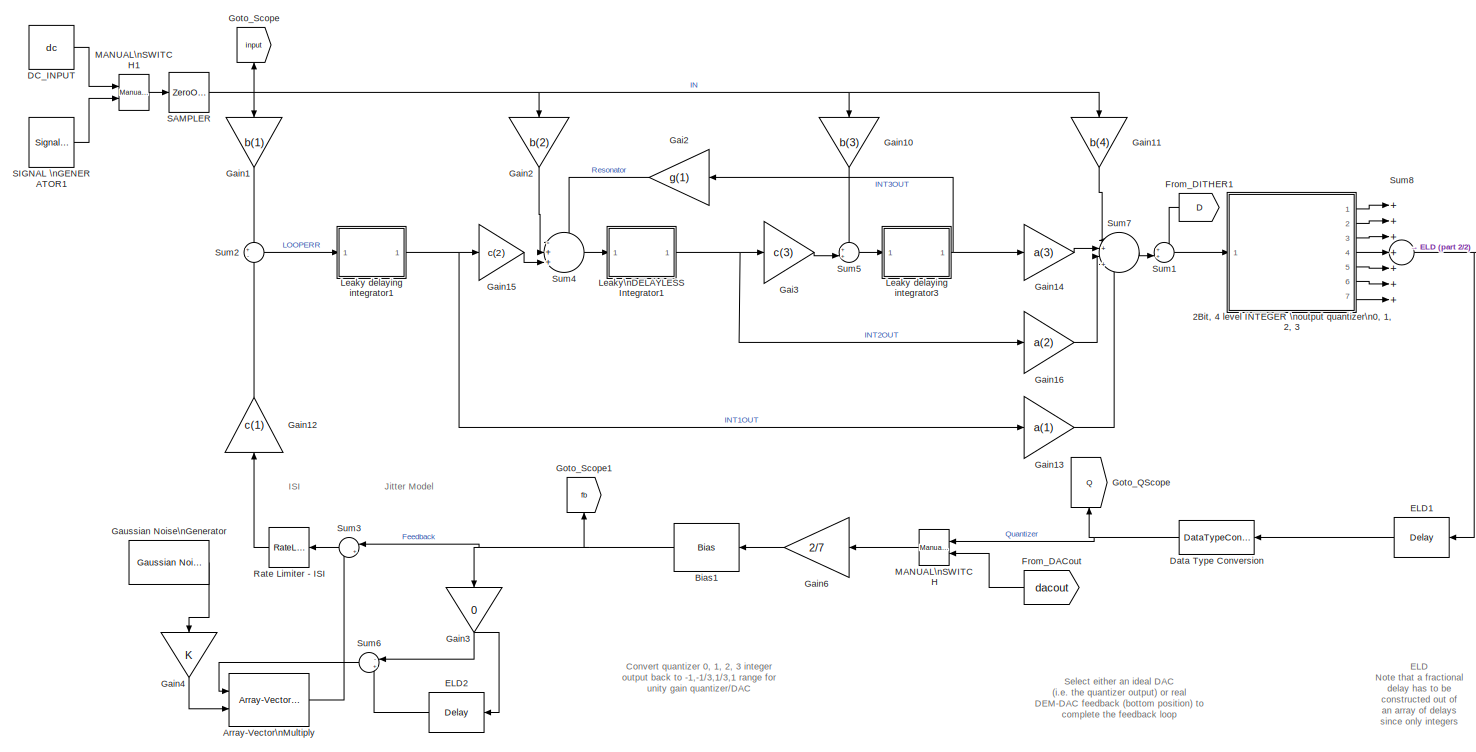
[diagram: root canvas - part 1/2, center side, full height]
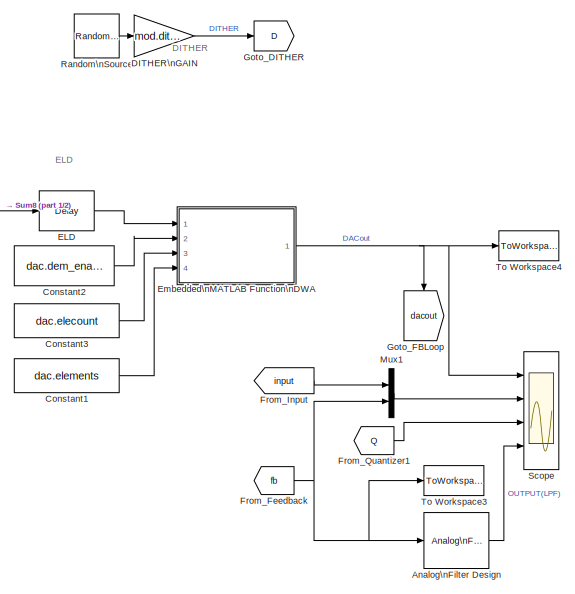
[diagram: root canvas - part 2/2, right side, full height]
MODEL Complete_DAC_mod3_CRFF_CTExample
KIND model
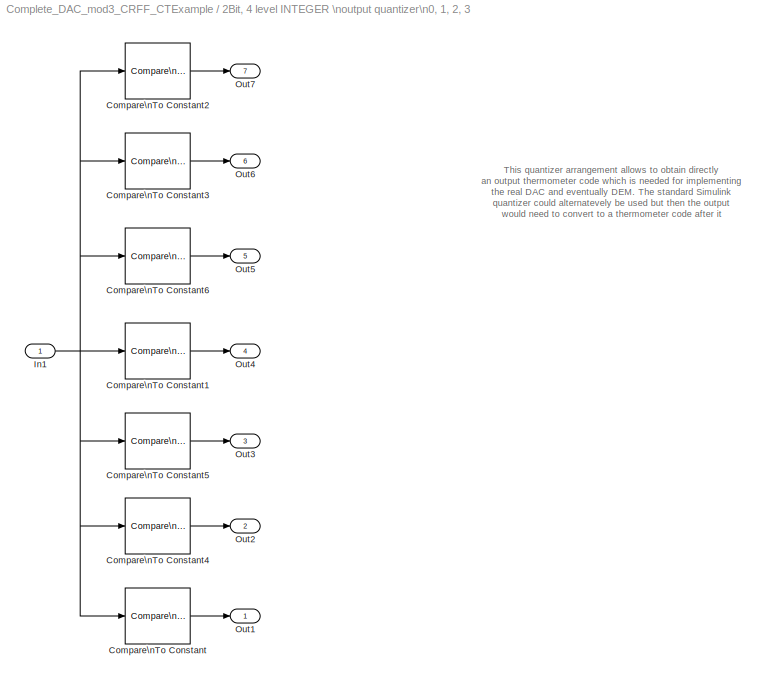
BLOCK [SubSystem] 2Bit, 4 level INTEGER  \noutput quantizer\n0, 1, 2, 3
  FunctionWithSeparateData = off
  MaskHideContents = off
  MinAlgLoopOccurrences = off
  Opaque = off
  Ports = [1, 7]
  PropExecContextOutsideSubsystem = off
  RTWSystemCode = Auto
  RequestExecContextInheritance = off
  SID = 305
BLOCK [Reference] 2Bit, 4 level INTEGER  \noutput quantizer\n0, 1, 2, 3/Compare\nTo Constant  REF=simulink/Logic and Bit\nOperations/Compare\nTo Constant
  OutDataTypeStr = uint8
  Ports = [1, 1]
  SID = 307
  SourceBlock = simulink/Logic and Bit\nOperations/Compare\nTo Constant
  SourceType = Compare To Constant
  ZeroCross = on
  const = -6/7
  relop = >=
BLOCK [Reference] 2Bit, 4 level INTEGER  \noutput quantizer\n0, 1, 2, 3/Compare\nTo Constant1  REF=simulink/Logic and Bit\nOperations/Compare\nTo Constant
  OutDataTypeStr = uint8
  Ports = [1, 1]
  SID = 308
  SourceBlock = simulink/Logic and Bit\nOperations/Compare\nTo Constant
  SourceType = Compare To Constant
  ZeroCross = on
  const = 0
  relop = >=
BLOCK [Reference] 2Bit, 4 level INTEGER  \noutput quantizer\n0, 1, 2, 3/Compare\nTo Constant2  REF=simulink/Logic and Bit\nOperations/Compare\nTo Constant
  OutDataTypeStr = uint8
  Ports = [1, 1]
  SID = 309
  SourceBlock = simulink/Logic and Bit\nOperations/Compare\nTo Constant
  SourceType = Compare To Constant
  ZeroCross = on
  const = 6/7
  relop = >=
BLOCK [Reference] 2Bit, 4 level INTEGER  \noutput quantizer\n0, 1, 2, 3/Compare\nTo Constant3  REF=simulink/Logic and Bit\nOperations/Compare\nTo Constant
  OutDataTypeStr = uint8
  Ports = [1, 1]
  SID = 438
  SourceBlock = simulink/Logic and Bit\nOperations/Compare\nTo Constant
  SourceType = Compare To Constant
  ZeroCross = on
  const = 4/7
  relop = >=
BLOCK [Reference] 2Bit, 4 level INTEGER  \noutput quantizer\n0, 1, 2, 3/Compare\nTo Constant4  REF=simulink/Logic and Bit\nOperations/Compare\nTo Constant
  OutDataTypeStr = uint8
  Ports = [1, 1]
  SID = 440
  SourceBlock = simulink/Logic and Bit\nOperations/Compare\nTo Constant
  SourceType = Compare To Constant
  ZeroCross = on
  const = -4/7
  relop = >=
BLOCK [Reference] 2Bit, 4 level INTEGER  \noutput quantizer\n0, 1, 2, 3/Compare\nTo Constant5  REF=simulink/Logic and Bit\nOperations/Compare\nTo Constant
  OutDataTypeStr = uint8
  Ports = [1, 1]
  SID = 442
  SourceBlock = simulink/Logic and Bit\nOperations/Compare\nTo Constant
  SourceType = Compare To Constant
  ZeroCross = on
  const = -2/7
  relop = >=
BLOCK [Reference] 2Bit, 4 level INTEGER  \noutput quantizer\n0, 1, 2, 3/Compare\nTo Constant6  REF=simulink/Logic and Bit\nOperations/Compare\nTo Constant
  OutDataTypeStr = uint8
  Ports = [1, 1]
  SID = 444
  SourceBlock = simulink/Logic and Bit\nOperations/Compare\nTo Constant
  SourceType = Compare To Constant
  ZeroCross = on
  const = 2/7
  relop = >=
BLOCK [Inport] 2Bit, 4 level INTEGER  \noutput quantizer\n0, 1, 2, 3/In1
  IconDisplay = Port number
  SID = 306
BLOCK [Outport] 2Bit, 4 level INTEGER  \noutput quantizer\n0, 1, 2, 3/Out1
  IconDisplay = Port number
  SID = 310
BLOCK [Outport] 2Bit, 4 level INTEGER  \noutput quantizer\n0, 1, 2, 3/Out2
  IconDisplay = Port number
  Port = 2
  SID = 311
BLOCK [Outport] 2Bit, 4 level INTEGER  \noutput quantizer\n0, 1, 2, 3/Out3
  IconDisplay = Port number
  Port = 3
  SID = 312
BLOCK [Outport] 2Bit, 4 level INTEGER  \noutput quantizer\n0, 1, 2, 3/Out4
  IconDisplay = Port number
  Port = 4
  SID = 439
BLOCK [Outport] 2Bit, 4 level INTEGER  \noutput quantizer\n0, 1, 2, 3/Out5
  IconDisplay = Port number
  Port = 5
  SID = 441
BLOCK [Outport] 2Bit, 4 level INTEGER  \noutput quantizer\n0, 1, 2, 3/Out6
  IconDisplay = Port number
  Port = 6
  SID = 443
BLOCK [Outport] 2Bit, 4 level INTEGER  \noutput quantizer\n0, 1, 2, 3/Out7
  IconDisplay = Port number
  Port = 7
  SID = 445
BLOCK [Reference] Analog\nFilter Design  REF=dsparch4/Analog\nFilter Design
  AttributesFormatString = Low-pass filter the loop output\\nto illustrate intuitively how the\\npulse density modulated +1/-1\\noutput stream does indeed capture\\nthe input signal
  N = 8
  Ports = [1, 1]
  Rp = 2
  Rs = 40
  SID = 314
  SourceBlock = dsparch4/Analog\nFilter Design
  SourceType = Analog Filter Design
  Whi = 80
  Wlo = pi*(Fs/OSR)
  filttype = Lowpass
  method = Butterworth
BLOCK [Reference] Array-Vector\nMultiply  REF=dspmtrx3/Array-Vector\nMultiply
  Dimension = 2
  LockScale = off
  Ports = [2, 1]
  SID = 455
  SourceBlock = dspmtrx3/Array-Vector\nMultiply
  SourceType = Array-Vector Multiply
  V_Source = Input port
  V_VectFromMask = [0.5 0.25]
  accumDataTypeStr = Inherit: Inherit via internal rule
  accumFracLength = 30
  accumLastDataTypeStr = Inherit: Inherit via internal rule
  accumMode = Inherit via internal rule
  accumSignedness = Auto
  accumWordLength = 32
  additionalParams = off
  allowOverrides = on
  firstCoeffDataTypeStr = Inherit: Same word length as input
  firstCoeffFracLength = 15
  firstCoeffLastDataTypeStr = Inherit: Same word length as input
  firstCoeffMax = []
  firstCoeffMin = []
  firstCoeffMode = Same word length as input
  firstCoeffSignedness = Auto
  firstCoeffWordLength = 16
  mode = Mute
  outputDataTypeStr = Inherit: Same as product output
  outputFracLength = 15
  outputLastDataTypeStr = Inherit: Same as product output
  outputMax = []
  outputMin = []
  outputMode = Same as product output
  outputSignedness = Auto
  outputWordLength = 16
  overflowMode = off
  prodOutputDataTypeStr = Inherit: Inherit via internal rule
  prodOutputFracLength = 30
  prodOutputLastDataTypeStr = Inherit: Inherit via internal rule
  prodOutputMode = Inherit via internal rule
  prodOutputSignedness = Auto
  prodOutputWordLength = 32
  roundingMode = Floor
  saveAsFlag = 0
BLOCK [Bias] Bias1
  Bias = -1
  SID = 315
  SaturateOnIntegerOverflow = off
BLOCK [Constant] Constant1
  SID = 316
  SampleTime = 1/Fs
  Value = dac.elements
BLOCK [Constant] Constant2
  SID = 317
  SampleTime = 1/Fs
  Value = dac.dem_enable
BLOCK [Constant] Constant3
  SID = 318
  SampleTime = 1/Fs
  Value = dac.elecount
BLOCK [Constant] DC_INPUT
  OutDataTypeStr = double
  SID = 468
  SampleTime = 1/Fs
  Value = dc
  VectorParams1D = off
BLOCK [Gain] DITHER\nGAIN
  Gain = mod.dither
  OutDataTypeStr = Inherit: Inherit via internal rule
  ParamDataTypeStr = Inherit: Inherit via internal rule
  SID = 243
  SampleTime = 1/Fs
  SaturateOnIntegerOverflow = off
BLOCK [DataTypeConversion] Data Type Conversion
  LockScale = on
  RndMeth = Floor
  SID = 320
  SampleTime = 1/Fs
  SaturateOnIntegerOverflow = off
BLOCK [Reference] ELD  REF=dspsigops/Delay
  InputProcessing = Inherited (this choice will be removed - see release notes)
  Ports = [1, 1]
  SID = 446
  SourceBlock = dspsigops/Delay
  SourceType = Delay
  UserData = DataTag0
  UserDataPersistent = on
  delay = 0
  dif_ic_for_ch = off
  dif_ic_for_dly = off
  dly_unit = Samples
  ic = 0
  ic_detail = off
  reset_popup = None
BLOCK [Reference] ELD1  REF=dspsigops/Delay
  InputProcessing = Inherited (this choice will be removed - see release notes)
  Ports = [1, 1]
  SID = 447
  SourceBlock = dspsigops/Delay
  SourceType = Delay
  UserData = DataTag1
  UserDataPersistent = on
  delay = 0
  dif_ic_for_ch = off
  dif_ic_for_dly = off
  dly_unit = Samples
  ic = 0
  ic_detail = off
  reset_popup = None
BLOCK [Reference] ELD2  REF=dspsigops/Delay
  InputProcessing = Inherited (this choice will be removed - see release notes)
  Ports = [1, 1]
  SID = 453
  SourceBlock = dspsigops/Delay
  SourceType = Delay
  UserData = DataTag2
  UserDataPersistent = on
  delay = 1
  dif_ic_for_ch = off
  dif_ic_for_dly = off
  dly_unit = Samples
  ic = 0
  ic_detail = off
  reset_popup = None
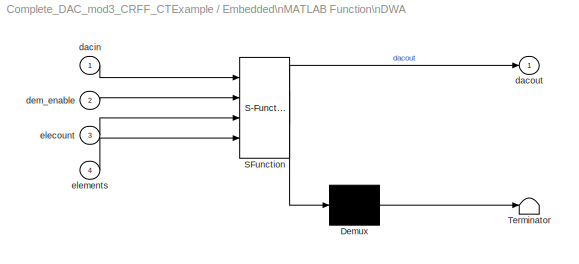
BLOCK [SubSystem] Embedded\nMATLAB Function\nDWA
  ErrorFcn = Stateflow.Translate.translate
  FunctionWithSeparateData = off
  MaskHideContents = off
  MinAlgLoopOccurrences = off
  Opaque = off
  PermitHierarchicalResolution = ExplicitOnly
  Ports = [4, 1]
  PropExecContextOutsideSubsystem = off
  RTWSystemCode = Auto
  RequestExecContextInheritance = off
  SFBlockType = MATLAB Function
  SID = 322
  TreatAsAtomicUnit = on
BLOCK [Demux] Embedded\nMATLAB Function\nDWA/ Demux 
  Outputs = 1
  Ports = [1, 1]
  SID = 322::84
BLOCK [S-Function] Embedded\nMATLAB Function\nDWA/ SFunction 
  EnableBusSupport = on
  FunctionName = sf_sfun
  PortCounts = [4 2]
  Ports = [4, 2]
  SID = 322::83
  Tag = Stateflow S-Function Complete_DAC_mod3_CRFF_CTExample 2
BLOCK [Terminator] Embedded\nMATLAB Function\nDWA/ Terminator 
  SID = 322::85
BLOCK [Inport] Embedded\nMATLAB Function\nDWA/dacin
  IconDisplay = Port number
  SID = 322::78
BLOCK [Outport] Embedded\nMATLAB Function\nDWA/dacout
  IconDisplay = Port number
  SID = 322::89
BLOCK [Inport] Embedded\nMATLAB Function\nDWA/dem_enable
  IconDisplay = Port number
  Port = 2
  SID = 322::86
BLOCK [Inport] Embedded\nMATLAB Function\nDWA/elecount
  IconDisplay = Port number
  Port = 3
  SID = 322::87
BLOCK [Inport] Embedded\nMATLAB Function\nDWA/elements
  IconDisplay = Port number
  Port = 4
  SID = 322::88
BLOCK [From] From_DACout
  GotoTag = dacout
  SID = 323
BLOCK [From] From_DITHER1
  GotoTag = D
  SID = 324
BLOCK [From] From_Feedback
  GotoTag = fb
  SID = 325
BLOCK [From] From_Input
  GotoTag = input
  SID = 326
BLOCK [From] From_Quantizer1
  GotoTag = Q
  SID = 327
BLOCK [Gain] Gai2
  Gain = g(1)
  OutDataTypeStr = Inherit: Inherit via internal rule
  ParamDataTypeStr = Inherit: Inherit via internal rule
  SID = 384
  SaturateOnIntegerOverflow = off
BLOCK [Gain] Gai3
  Gain = c(3)
  OutDataTypeStr = Inherit: Inherit via internal rule
  ParamDataTypeStr = Inherit: Inherit via internal rule
  SID = 385
  SaturateOnIntegerOverflow = off
BLOCK [Gain] Gain1
  Gain = b(1)
  OutDataTypeStr = Inherit: Inherit via internal rule
  ParamDataTypeStr = Inherit: Inherit via internal rule
  SID = 386
  SampleTime = 1/Fs
  SaturateOnIntegerOverflow = off
BLOCK [Gain] Gain10
  Gain = b(3)
  OutDataTypeStr = Inherit: Inherit via internal rule
  ParamDataTypeStr = Inherit: Inherit via internal rule
  SID = 388
  SampleTime = 1/Fs
  SaturateOnIntegerOverflow = off
BLOCK [Gain] Gain11
  Gain = b(4)
  OutDataTypeStr = Inherit: Inherit via internal rule
  ParamDataTypeStr = Inherit: Inherit via internal rule
  SID = 389
  SampleTime = 1/Fs
  SaturateOnIntegerOverflow = off
BLOCK [Gain] Gain12
  Gain = c(1)
  OutDataTypeStr = Inherit: Inherit via internal rule
  ParamDataTypeStr = Inherit: Inherit via internal rule
  SID = 390
  SampleTime = 1/Fs
  SaturateOnIntegerOverflow = off
BLOCK [Gain] Gain13
  Gain = a(1)
  OutDataTypeStr = Inherit: Inherit via internal rule
  ParamDataTypeStr = Inherit: Inherit via internal rule
  SID = 391
  SaturateOnIntegerOverflow = off
BLOCK [Gain] Gain14
  Gain = a(3)
  OutDataTypeStr = Inherit: Inherit via internal rule
  ParamDataTypeStr = Inherit: Inherit via internal rule
  SID = 392
  SaturateOnIntegerOverflow = off
BLOCK [Gain] Gain15
  Gain = c(2)
  OutDataTypeStr = Inherit: Inherit via internal rule
  ParamDataTypeStr = Inherit: Inherit via internal rule
  SID = 393
  SaturateOnIntegerOverflow = off
BLOCK [Gain] Gain16
  Gain = a(2)
  OutDataTypeStr = Inherit: Inherit via internal rule
  ParamDataTypeStr = Inherit: Inherit via internal rule
  SID = 394
  SaturateOnIntegerOverflow = off
BLOCK [Gain] Gain2
  Gain = b(2)
  OutDataTypeStr = Inherit: Inherit via internal rule
  ParamDataTypeStr = Inherit: Inherit via internal rule
  SID = 387
  SampleTime = 1/Fs
  SaturateOnIntegerOverflow = off
BLOCK [Gain] Gain3
  Gain = 0
  OutDataTypeStr = Inherit: Inherit via internal rule
  ParamDataTypeStr = Inherit: Inherit via internal rule
  SID = 452
  SampleTime = 1/Fs
  SaturateOnIntegerOverflow = off
BLOCK [Gain] Gain4
  OutDataTypeStr = Inherit: Inherit via internal rule
  ParamDataTypeStr = Inherit: Inherit via internal rule
  SID = 458
  SampleTime = 1/Fs
  SaturateOnIntegerOverflow = off
BLOCK [Gain] Gain6
  Gain = 2/7
  OutDataTypeStr = Inherit: Inherit via internal rule
  ParamDataTypeStr = Inherit: Inherit via internal rule
  SID = 328
  SampleTime = 1/Fs
  SaturateOnIntegerOverflow = off
BLOCK [Reference] Gaussian Noise\nGenerator  REF=commnoisgen2/Gaussian Noise\nGenerator
  Ports = [0, 1]
  SID = 459
  SourceBlock = commnoisgen2/Gaussian Noise\nGenerator
  SourceType = Gaussian Noise Generator
  Ts = 1/Fs
  d = 50
  frameBased = off
  m = 50e-12
  orient = on
  outDataType = double
  s = 40
  sampPerFrame = 1
BLOCK [Goto] Goto_DITHER
  GotoTag = D
  SID = 244
BLOCK [Goto] Goto_FBLoop
  GotoTag = dacout
  SID = 330
BLOCK [Goto] Goto_QScope
  GotoTag = Q
  SID = 331
BLOCK [Goto] Goto_Scope
  GotoTag = input
  SID = 371
BLOCK [Goto] Goto_Scope1
  GotoTag = fb
  SID = 332
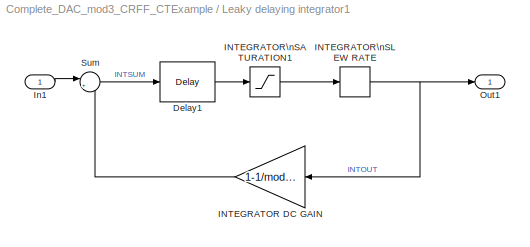
BLOCK [SubSystem] Leaky delaying integrator1
  FunctionWithSeparateData = off
  MaskHideContents = off
  MinAlgLoopOccurrences = off
  Opaque = off
  Ports = [1, 1]
  PropExecContextOutsideSubsystem = off
  RTWSystemCode = Auto
  RequestExecContextInheritance = off
  SID = 403
BLOCK [Reference] Leaky delaying integrator1/Delay1  REF=dspsigops/Delay
  InputProcessing = Inherited (this choice will be removed - see release notes)
  Ports = [1, 1]
  SID = 405
  SourceBlock = dspsigops/Delay
  SourceType = Delay
  UserData = DataTag4
  UserDataPersistent = on
  delay = 1
  dif_ic_for_ch = off
  dif_ic_for_dly = off
  dly_unit = Samples
  ic = 0
  ic_detail = off
  reset_popup = None
BLOCK [Gain] Leaky delaying integrator1/INTEGRATOR DC GAIN
  AttributesFormatString = Integrator leakage\\n(model finite integrator dc/LF\\ngain in analog modulators)
  Gain = 1-1/mod.igain1
  OutDataTypeStr = Inherit: Inherit via internal rule
  ParamDataTypeStr = Inherit: Inherit via internal rule
  SID = 408
  SampleTime = 1/Fs
  SaturateOnIntegerOverflow = off
BLOCK [Saturate] Leaky delaying integrator1/INTEGRATOR\nSATURATION1
  InputPortMap = u0
  LowerLimit = -(mod.isat1)
  Ports = [1, 1]
  SID = 406
  UpperLimit = mod.isat1
BLOCK [RateLimiter] Leaky delaying integrator1/INTEGRATOR\nSLEW RATE
  FallingSlewLimit = -(mod.isr1)
  RisingSlewLimit = mod.isr1
  SID = 407
  SampleTimeMode = inherited
BLOCK [Inport] Leaky delaying integrator1/In1
  IconDisplay = Port number
  SID = 404
BLOCK [Outport] Leaky delaying integrator1/Out1
  IconDisplay = Port number
  SID = 410
BLOCK [Sum] Leaky delaying integrator1/Sum
  AttributesFormatString = Integrator summer
  IconShape = round
  InputSameDT = off
  Inputs = |++
  OutDataTypeStr = Inherit: Inherit via internal rule
  Ports = [2, 1]
  SID = 409
  SampleTime = 1/Fs
  SaturateOnIntegerOverflow = off
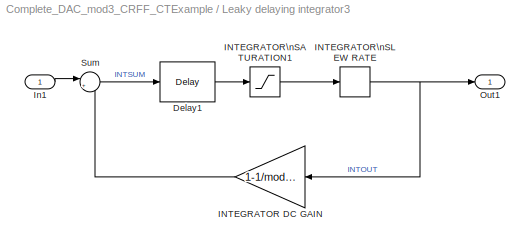
BLOCK [SubSystem] Leaky delaying integrator3
  FunctionWithSeparateData = off
  MaskHideContents = off
  MinAlgLoopOccurrences = off
  Opaque = off
  Ports = [1, 1]
  PropExecContextOutsideSubsystem = off
  RTWSystemCode = Auto
  RequestExecContextInheritance = off
  SID = 411
BLOCK [Reference] Leaky delaying integrator3/Delay1  REF=dspsigops/Delay
  InputProcessing = Inherited (this choice will be removed - see release notes)
  Ports = [1, 1]
  SID = 413
  SourceBlock = dspsigops/Delay
  SourceType = Delay
  UserData = DataTag5
  UserDataPersistent = on
  delay = 1
  dif_ic_for_ch = off
  dif_ic_for_dly = off
  dly_unit = Samples
  ic = 0
  ic_detail = off
  reset_popup = None
BLOCK [Gain] Leaky delaying integrator3/INTEGRATOR DC GAIN
  AttributesFormatString = Integrator leakage\\n(model finite integrator dc/LF\\ngain in analog modulators)
  Gain = 1-1/mod.igain3
  OutDataTypeStr = Inherit: Inherit via internal rule
  ParamDataTypeStr = Inherit: Inherit via internal rule
  SID = 416
  SaturateOnIntegerOverflow = off
BLOCK [Saturate] Leaky delaying integrator3/INTEGRATOR\nSATURATION1
  InputPortMap = u0
  LowerLimit = -(mod.isat3)
  Ports = [1, 1]
  SID = 414
  UpperLimit = mod.isat3
BLOCK [RateLimiter] Leaky delaying integrator3/INTEGRATOR\nSLEW RATE
  FallingSlewLimit = -(mod.isr3)
  RisingSlewLimit = mod.isr3
  SID = 415
  SampleTimeMode = inherited
BLOCK [Inport] Leaky delaying integrator3/In1
  IconDisplay = Port number
  SID = 412
BLOCK [Outport] Leaky delaying integrator3/Out1
  IconDisplay = Port number
  SID = 418
BLOCK [Sum] Leaky delaying integrator3/Sum
  AttributesFormatString = Integrator summer
  IconShape = round
  InputSameDT = off
  Inputs = |++
  OutDataTypeStr = Inherit: Inherit via internal rule
  Ports = [2, 1]
  SID = 417
  SampleTime = 1/Fs
  SaturateOnIntegerOverflow = off
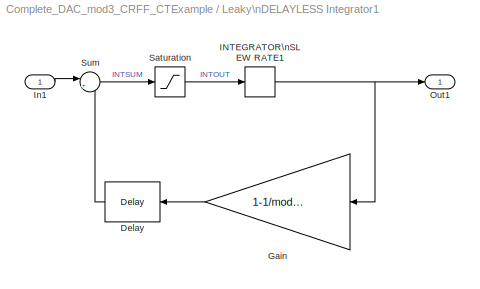
BLOCK [SubSystem] Leaky\nDELAYLESS Integrator1
  FunctionWithSeparateData = off
  MaskHideContents = off
  MinAlgLoopOccurrences = off
  Opaque = off
  Ports = [1, 1]
  PropExecContextOutsideSubsystem = off
  RTWSystemCode = Auto
  RequestExecContextInheritance = off
  SID = 395
BLOCK [Reference] Leaky\nDELAYLESS Integrator1/Delay  REF=dspsigops/Delay
  InputProcessing = Inherited (this choice will be removed - see release notes)
  Ports = [1, 1]
  SID = 397
  SourceBlock = dspsigops/Delay
  SourceType = Delay
  UserData = DataTag3
  UserDataPersistent = on
  delay = 1
  dif_ic_for_ch = off
  dif_ic_for_dly = off
  dly_unit = Samples
  ic = 0
  ic_detail = off
  reset_popup = None
BLOCK [Gain] Leaky\nDELAYLESS Integrator1/Gain
  AttributesFormatString = Integrator leakage
  Gain = 1-1/mod.igain2
  OutDataTypeStr = Inherit: Inherit via internal rule
  ParamDataTypeStr = Inherit: Inherit via internal rule
  SID = 398
  SaturateOnIntegerOverflow = off
BLOCK [RateLimiter] Leaky\nDELAYLESS Integrator1/INTEGRATOR\nSLEW RATE1
  FallingSlewLimit = -(mod.isr2)
  RisingSlewLimit = mod.isr2
  SID = 399
  SampleTimeMode = inherited
BLOCK [Inport] Leaky\nDELAYLESS Integrator1/In1
  IconDisplay = Port number
  SID = 396
BLOCK [Outport] Leaky\nDELAYLESS Integrator1/Out1
  IconDisplay = Port number
  SID = 402
BLOCK [Saturate] Leaky\nDELAYLESS Integrator1/Saturation
  InputPortMap = u0
  LowerLimit = -(mod.isat2)
  Ports = [1, 1]
  SID = 400
  UpperLimit = mod.isat2
BLOCK [Sum] Leaky\nDELAYLESS Integrator1/Sum
  AttributesFormatString = Integrator summer
  IconShape = round
  InputSameDT = off
  Inputs = |++
  OutDataTypeStr = Inherit: Inherit via internal rule
  Ports = [2, 1]
  SID = 401
  SampleTime = 1/Fs
  SaturateOnIntegerOverflow = off
BLOCK [Reference] MANUAL\nSWITCH  REF=simulink/Signal\nRouting/Manual Switch
  AttributesFormatString = Double click to\\nselect the desired\\ninput
  Ports = [2, 1]
  SID = 333
  SourceBlock = simulink/Signal\nRouting/Manual Switch
  SourceType = Manual Switch
  action = 0
  sw = 0
  varsize = off
BLOCK [Reference] MANUAL\nSWITCH1  REF=simulink/Signal\nRouting/Manual Switch
  AttributesFormatString = Double click to\\nselect the desired\\ninput
  Ports = [2, 1]
  SID = 469
  SourceBlock = simulink/Signal\nRouting/Manual Switch
  SourceType = Manual Switch
  action = 0
  sw = 0
  varsize = off
BLOCK [Mux] Mux1
  DisplayOption = bar
  Inputs = 2
  Ports = [2, 1]
  SID = 334
BLOCK [Reference] Random\nSource  REF=dspsrcs4/Random\nSource
  CltLength = 12
  DataType = Double
  IsInherit = off
  MaxVal = 1
  MeanVal = 0
  MinVal = -1
  NormMethod = Ziggurat
  OutComplex = Real
  Ports = [0, 1]
  RepMode = Not repeatable
  SID = 245
  SampFrame = 1
  SampMode = Discrete
  SampTime = 1/Fs
  SourceBlock = dspsrcs4/Random\nSource
  SourceType = Random Source
  SrcType = Uniform
  UserData = DataTag6
  UserDataPersistent = on
  VarVal = 1
  rawSeed = 1
BLOCK [RateLimiter] Rate Limiter - ISI
  FallingSlewLimit = -inf
  RisingSlewLimit = inf
  SID = 456
  SampleTimeMode = inherited
BLOCK [ZeroOrderHold] SAMPLER
  SID = 470
  SampleTime = 1/Fs
BLOCK [SignalGenerator] SIGNAL \nGENERATOR1
  Amplitude = sinamp
  Frequency = sinfreq
  Ports = [0, 1]
  SID = 471
  VectorParams1D = off
BLOCK [Scope] Scope
  DataFormat = StructureWithTime
  Floating = off
  NumInputPorts = 4
  Ports = [4]
  SID = 352
  SampleTime = 0
  ShowLegends = off
  YMax = 3.5~1~1~1
  YMin = 0~-1~-1~-1
  ZoomMode = xonly
BLOCK [Sum] Sum1
  IconShape = round
  InputSameDT = off
  Inputs = ++|
  OutDataTypeStr = Inherit: Inherit via internal rule
  Ports = [2, 1]
  SID = 427
  SampleTime = 1/Fs
  SaturateOnIntegerOverflow = off
BLOCK [Sum] Sum2
  IconShape = round
  InputSameDT = off
  Inputs = +-
  OutDataTypeStr = Inherit: Inherit via internal rule
  Ports = [2, 1]
  SID = 419
  SampleTime = 1/Fs
  SaturateOnIntegerOverflow = off
BLOCK [Sum] Sum3
  IconShape = round
  InputSameDT = off
  Inputs = |++
  OutDataTypeStr = Inherit: Inherit via internal rule
  Ports = [2, 1]
  SID = 451
  SampleTime = 1/Fs
  SaturateOnIntegerOverflow = off
BLOCK [Sum] Sum4
  IconShape = round
  InputSameDT = off
  Inputs = -++||
  OutDataTypeStr = Inherit: Inherit via internal rule
  Ports = [3, 1]
  SID = 420
  SaturateOnIntegerOverflow = off
BLOCK [Sum] Sum5
  IconShape = round
  InputSameDT = off
  Inputs = ++|
  OutDataTypeStr = Inherit: Inherit via internal rule
  Ports = [2, 1]
  SID = 421
  SaturateOnIntegerOverflow = off
BLOCK [Sum] Sum6
  IconShape = round
  InputSameDT = off
  Inputs = -+
  OutDataTypeStr = Inherit: Inherit via internal rule
  Ports = [2, 1]
  SID = 454
  SampleTime = 1/Fs
  SaturateOnIntegerOverflow = off
BLOCK [Sum] Sum7
  IconShape = round
  InputSameDT = off
  Inputs = |+|+|++
  OutDataTypeStr = Inherit: Inherit via internal rule
  Ports = [4, 1]
  SID = 422
  SaturateOnIntegerOverflow = off
BLOCK [Sum] Sum8
  InputSameDT = off
  Inputs = +++++++
  OutDataTypeStr = Inherit: Inherit via internal rule
  Ports = [7, 1]
  SID = 356
  SampleTime = 1/Fs
  SaturateOnIntegerOverflow = off
BLOCK [ToWorkspace] To Workspace3
  MaxDataPoints = inf
  Ports = [1]
  SID = 366
  SampleTime = -1
  VariableName = mod_out
BLOCK [ToWorkspace] To Workspace4
  MaxDataPoints = inf
  Ports = [1]
  SID = 358
  SampleTime = -1
  VariableName = DACout
ANNOTATION (root): DITHER \n\n\n\n\n\n
ANNOTATION (root): Select either an ideal DAC \n(i.e. the quantizer output) or real\nDEM-DAC feedback (bottom position) to \ncomplete the feedback loop
ANNOTATION (root): ELD
ANNOTATION (root): ELD\nNote that a fractional \ndelay has to be \nconstructed out of \nan array of delays\nsince only integers\nare allowed in the \ndelay block
ANNOTATION (root): Jitter Model
ANNOTATION (root): Convert quantizer 0, 1, 2, 3 integer\noutput back to -1,-1/3,1/3,1 range for\nunity gain quantizer/DAC
ANNOTATION (root): ISI
ANNOTATION 2Bit, 4 level INTEGER  \noutput quantizer\n0, 1, 2, 3: This quantizer arrangement allows to obtain directly \nan output thermometer code which is needed for implementing\nthe real DAC and eventually DEM. The standard Simulink\nquantizer could alternatevely be used but then the output\nwould need to convert to a thermometer code after it
LINE 2Bit, 4 level INTEGER  \noutput quantizer\n0, 1, 2, 3/Compare\nTo Constant1:1 -> 2Bit, 4 level INTEGER  \noutput quantizer\n0, 1, 2, 3/Out4:1
LINE 2Bit, 4 level INTEGER  \noutput quantizer\n0, 1, 2, 3/Compare\nTo Constant2:1 -> 2Bit, 4 level INTEGER  \noutput quantizer\n0, 1, 2, 3/Out7:1
LINE 2Bit, 4 level INTEGER  \noutput quantizer\n0, 1, 2, 3/Compare\nTo Constant3:1 -> 2Bit, 4 level INTEGER  \noutput quantizer\n0, 1, 2, 3/Out6:1
LINE 2Bit, 4 level INTEGER  \noutput quantizer\n0, 1, 2, 3/Compare\nTo Constant4:1 -> 2Bit, 4 level INTEGER  \noutput quantizer\n0, 1, 2, 3/Out2:1
LINE 2Bit, 4 level INTEGER  \noutput quantizer\n0, 1, 2, 3/Compare\nTo Constant5:1 -> 2Bit, 4 level INTEGER  \noutput quantizer\n0, 1, 2, 3/Out3:1
LINE 2Bit, 4 level INTEGER  \noutput quantizer\n0, 1, 2, 3/Compare\nTo Constant6:1 -> 2Bit, 4 level INTEGER  \noutput quantizer\n0, 1, 2, 3/Out5:1
LINE 2Bit, 4 level INTEGER  \noutput quantizer\n0, 1, 2, 3/Compare\nTo Constant:1 -> 2Bit, 4 level INTEGER  \noutput quantizer\n0, 1, 2, 3/Out1:1
NET 2Bit, 4 level INTEGER  \noutput quantizer\n0, 1, 2, 3/In1:1 -> 2Bit, 4 level INTEGER  \noutput quantizer\n0, 1, 2, 3/Compare\nTo Constant1:1, 2Bit, 4 level INTEGER  \noutput quantizer\n0, 1, 2, 3/Compare\nTo Constant2:1, 2Bit, 4 level INTEGER  \noutput quantizer\n0, 1, 2, 3/Compare\nTo Constant3:1, 2Bit, 4 level INTEGER  \noutput quantizer\n0, 1, 2, 3/Compare\nTo Constant4:1, 2Bit, 4 level INTEGER  \noutput quantizer\n0, 1, 2, 3/Compare\nTo Constant5:1, 2Bit, 4 level INTEGER  \noutput quantizer\n0, 1, 2, 3/Compare\nTo Constant6:1, 2Bit, 4 level INTEGER  \noutput quantizer\n0, 1, 2, 3/Compare\nTo Constant:1
LINE 2Bit, 4 level INTEGER  \noutput quantizer\n0, 1, 2, 3:1 -> Sum8:1
LINE 2Bit, 4 level INTEGER  \noutput quantizer\n0, 1, 2, 3:2 -> Sum8:2
LINE 2Bit, 4 level INTEGER  \noutput quantizer\n0, 1, 2, 3:3 -> Sum8:3
LINE 2Bit, 4 level INTEGER  \noutput quantizer\n0, 1, 2, 3:4 -> Sum8:4
LINE 2Bit, 4 level INTEGER  \noutput quantizer\n0, 1, 2, 3:5 -> Sum8:5
LINE 2Bit, 4 level INTEGER  \noutput quantizer\n0, 1, 2, 3:6 -> Sum8:6
LINE 2Bit, 4 level INTEGER  \noutput quantizer\n0, 1, 2, 3:7 -> Sum8:7
LINE Analog\nFilter Design:1 -> Scope:4
LINE Array-Vector\nMultiply:1 -> Sum3:2
NET Bias1:1 -> Gain3:1, Goto_Scope1:1, Sum3:1
LINE Constant1:1 -> Embedded\nMATLAB Function\nDWA:4
LINE Constant2:1 -> Embedded\nMATLAB Function\nDWA:2
LINE Constant3:1 -> Embedded\nMATLAB Function\nDWA:3
LINE DC_INPUT:1 -> MANUAL\nSWITCH1:1
LINE DITHER\nGAIN:1 -> Goto_DITHER:1
NET Data Type Conversion:1 -> Goto_QScope:1, MANUAL\nSWITCH:1
LINE ELD1:1 -> Data Type Conversion:1
LINE ELD2:1 -> Sum6:2
LINE ELD:1 -> Embedded\nMATLAB Function\nDWA:1
LINE Embedded\nMATLAB Function\nDWA/ Demux :1 -> Embedded\nMATLAB Function\nDWA/ Terminator :1
LINE Embedded\nMATLAB Function\nDWA/ SFunction :1 -> Embedded\nMATLAB Function\nDWA/ Demux :1
LINE Embedded\nMATLAB Function\nDWA/ SFunction :2 -> Embedded\nMATLAB Function\nDWA/dacout:1
LINE Embedded\nMATLAB Function\nDWA/dacin:1 -> Embedded\nMATLAB Function\nDWA/ SFunction :1
LINE Embedded\nMATLAB Function\nDWA/dem_enable:1 -> Embedded\nMATLAB Function\nDWA/ SFunction :2
LINE Embedded\nMATLAB Function\nDWA/elecount:1 -> Embedded\nMATLAB Function\nDWA/ SFunction :3
LINE Embedded\nMATLAB Function\nDWA/elements:1 -> Embedded\nMATLAB Function\nDWA/ SFunction :4
NET Embedded\nMATLAB Function\nDWA:1 -> Goto_FBLoop:1, Scope:1, To Workspace4:1
LINE From_DACout:1 -> MANUAL\nSWITCH:2
LINE From_DITHER1:1 -> Sum1:1
NET From_Feedback:1 -> Analog\nFilter Design:1, Mux1:2, To Workspace3:1
LINE From_Input:1 -> Mux1:1
LINE From_Quantizer1:1 -> Scope:3
LINE Gai2:1 -> Sum4:1
LINE Gai3:1 -> Sum5:2
LINE Gain10:1 -> Sum5:1
LINE Gain11:1 -> Sum7:1
LINE Gain12:1 -> Sum2:2
LINE Gain13:1 -> Sum7:4
LINE Gain14:1 -> Sum7:2
LINE Gain15:1 -> Sum4:3
LINE Gain16:1 -> Sum7:3
LINE Gain1:1 -> Sum2:1
LINE Gain2:1 -> Sum4:2
NET Gain3:1 -> ELD2:1, Sum6:1
LINE Gain4:1 -> Array-Vector\nMultiply:2
LINE Gain6:1 -> Bias1:1
LINE Gaussian Noise\nGenerator:1 -> Gain4:1
LINE Leaky delaying integrator1/Delay1:1 -> Leaky delaying integrator1/INTEGRATOR\nSATURATION1:1
LINE Leaky delaying integrator1/INTEGRATOR DC GAIN:1 -> Leaky delaying integrator1/Sum:2
LINE Leaky delaying integrator1/INTEGRATOR\nSATURATION1:1 -> Leaky delaying integrator1/INTEGRATOR\nSLEW RATE:1
NET Leaky delaying integrator1/INTEGRATOR\nSLEW RATE:1 -> Leaky delaying integrator1/INTEGRATOR DC GAIN:1, Leaky delaying integrator1/Out1:1
LINE Leaky delaying integrator1/In1:1 -> Leaky delaying integrator1/Sum:1
LINE Leaky delaying integrator1/Sum:1 -> Leaky delaying integrator1/Delay1:1
NET Leaky delaying integrator1:1 -> Gain13:1, Gain15:1
LINE Leaky delaying integrator3/Delay1:1 -> Leaky delaying integrator3/INTEGRATOR\nSATURATION1:1
LINE Leaky delaying integrator3/INTEGRATOR DC GAIN:1 -> Leaky delaying integrator3/Sum:2
LINE Leaky delaying integrator3/INTEGRATOR\nSATURATION1:1 -> Leaky delaying integrator3/INTEGRATOR\nSLEW RATE:1
NET Leaky delaying integrator3/INTEGRATOR\nSLEW RATE:1 -> Leaky delaying integrator3/INTEGRATOR DC GAIN:1, Leaky delaying integrator3/Out1:1
LINE Leaky delaying integrator3/In1:1 -> Leaky delaying integrator3/Sum:1
LINE Leaky delaying integrator3/Sum:1 -> Leaky delaying integrator3/Delay1:1
NET Leaky delaying integrator3:1 -> Gai2:1, Gain14:1
LINE Leaky\nDELAYLESS Integrator1/Delay:1 -> Leaky\nDELAYLESS Integrator1/Sum:2
LINE Leaky\nDELAYLESS Integrator1/Gain:1 -> Leaky\nDELAYLESS Integrator1/Delay:1
NET Leaky\nDELAYLESS Integrator1/INTEGRATOR\nSLEW RATE1:1 -> Leaky\nDELAYLESS Integrator1/Gain:1, Leaky\nDELAYLESS Integrator1/Out1:1
LINE Leaky\nDELAYLESS Integrator1/In1:1 -> Leaky\nDELAYLESS Integrator1/Sum:1
LINE Leaky\nDELAYLESS Integrator1/Saturation:1 -> Leaky\nDELAYLESS Integrator1/INTEGRATOR\nSLEW RATE1:1
LINE Leaky\nDELAYLESS Integrator1/Sum:1 -> Leaky\nDELAYLESS Integrator1/Saturation:1
NET Leaky\nDELAYLESS Integrator1:1 -> Gai3:1, Gain16:1
LINE MANUAL\nSWITCH1:1 -> SAMPLER:1
LINE MANUAL\nSWITCH:1 -> Gain6:1
LINE Mux1:1 -> Scope:2
LINE Random\nSource:1 -> DITHER\nGAIN:1
LINE Rate Limiter - ISI:1 -> Gain12:1
NET SAMPLER:1 -> Gain10:1, Gain11:1, Gain1:1, Gain2:1, Goto_Scope:1
LINE SIGNAL \nGENERATOR1:1 -> MANUAL\nSWITCH1:2
LINE Sum1:1 -> 2Bit, 4 level INTEGER  \noutput quantizer\n0, 1, 2, 3:1
LINE Sum2:1 -> Leaky delaying integrator1:1
LINE Sum3:1 -> Rate Limiter - ISI:1
LINE Sum4:1 -> Leaky\nDELAYLESS Integrator1:1
LINE Sum5:1 -> Leaky delaying integrator3:1
LINE Sum6:1 -> Array-Vector\nMultiply:1
LINE Sum7:1 -> Sum1:2
NET Sum8:1 -> ELD1:1, ELD:1
note: NET lines group one-source signal fan-out (src -> all destinations, sorted); 1:1 wires keep LINE
CHART Embedded\nMATLAB Function\nDWA states=1 transitions=1
  STATE_LABEL 'eML_blk_kernel()'
